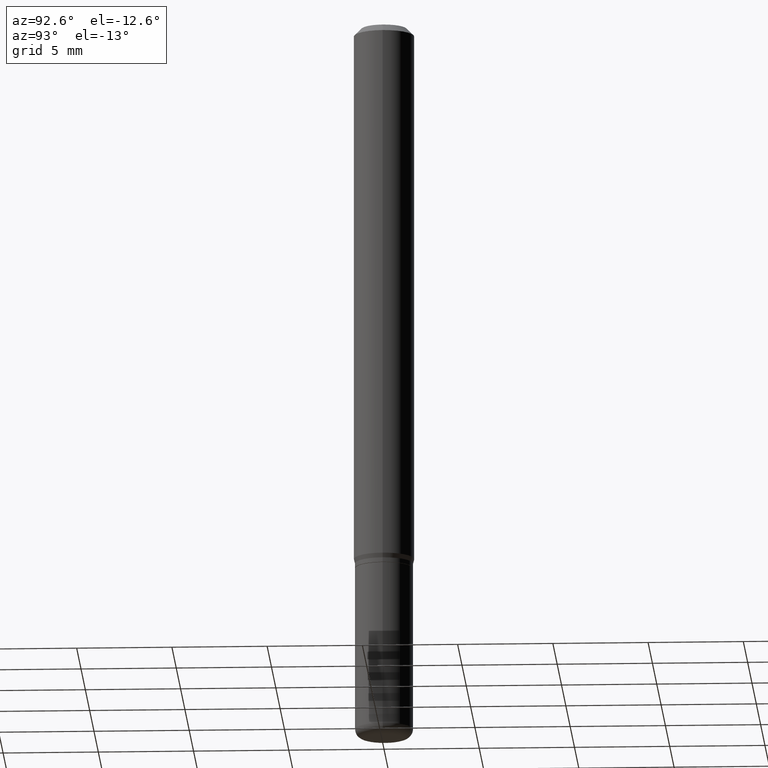
[diagram: clean part render]
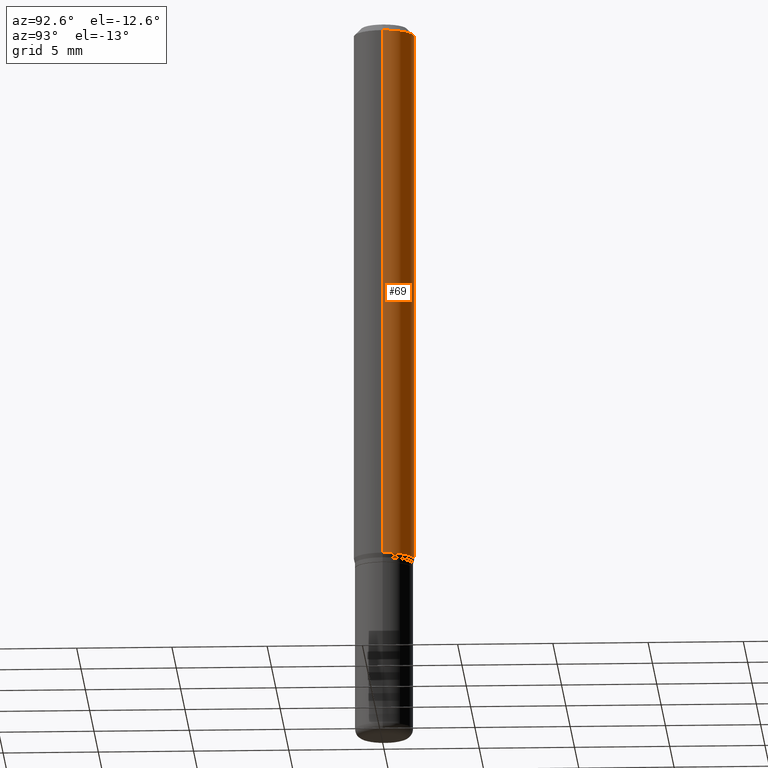
[diagram: same view with one face highlighted and labeled with its STEP entity id]
A machine part, auxiliary view. The second image highlights one B-rep face of the part: STEP entity #69.
In plain terms, the highlighted cylindrical surface (edge-blend (fillet) strip) has radius 1.5875 mm, axis along (-0, 0, 1).
Its self-contained STEP definition (entity closure, byte-faithful):
#5 = VERTEX_POINT ( 'NONE', #137 ) ;
#13 = DIRECTION ( 'NONE',  ( -2.445468806185136597E-29, 3.491481338843145583E-15, 1.000000000000000000 ) ) ;
#33 = VECTOR ( 'NONE', #306, 39.37007874015748143 ) ;
#48 = EDGE_CURVE ( 'NONE', #224, #383, #463, .T. ) ;
#69 = ADVANCED_FACE ( 'NONE', ( #215 ), #303, .T. ) ;
#72 = VERTEX_POINT ( 'NONE', #221 ) ;
#91 = ORIENTED_EDGE ( 'NONE', *, *, #48, .F. ) ;
#120 = EDGE_CURVE ( 'NONE', #5, #72, #428, .T. ) ;
#130 = CIRCLE ( 'NONE', #489, 0.06250000000000000000 ) ;
#137 = CARTESIAN_POINT ( 'NONE',  ( -0.06250000000000000000, -3.468708738667089875E-15, -1.120669872981078008 ) ) ;
#197 = AXIS2_PLACEMENT_3D ( 'NONE', #245, #200, #479 ) ;
#200 = DIRECTION ( 'NONE',  ( -2.445468806185136597E-29, 3.491481338843145583E-15, 1.000000000000000000 ) ) ;
#205 = VECTOR ( 'NONE', #494, 39.37007874015748143 ) ;
#211 = ORIENTED_EDGE ( 'NONE', *, *, #468, .T. ) ;
#215 = FACE_OUTER_BOUND ( 'NONE', #382, .T. ) ;
#221 = CARTESIAN_POINT ( 'NONE',  ( -0.06250000000000000000, -1.538495874449836183E-15, -0.01499999999999970281 ) ) ;
#224 = VERTEX_POINT ( 'NONE', #391 ) ;
#245 = CARTESIAN_POINT ( 'NONE',  ( 3.668203209277632395E-31, -5.237222008264614861E-17, -0.01499999999999970281 ) ) ;
#247 = CARTESIAN_POINT ( 'NONE',  ( 0.06250000000000000000, -4.888073874380378612E-16, -0.01499999999999970281 ) ) ;
#301 = DIRECTION ( 'NONE',  ( 1.000000000000000000, -6.982962677686262766E-15, 0.000000000000000000 ) ) ;
#303 = CYLINDRICAL_SURFACE ( 'NONE', #319, 0.06250000000000000000 ) ;
#306 = DIRECTION ( 'NONE',  ( -2.445468806185136877E-29, 3.491481338843145188E-15, 1.000000000000000000 ) ) ;
#319 = AXIS2_PLACEMENT_3D ( 'NONE', #425, #452, #337 ) ;
#337 = DIRECTION ( 'NONE',  ( 1.000000000000000000, -6.982962677686266711E-15, 4.876176775795935793E-29 ) ) ;
#353 = ORIENTED_EDGE ( 'NONE', *, *, #429, .F. ) ;
#378 = ORIENTED_EDGE ( 'NONE', *, *, #120, .T. ) ;
#380 = CARTESIAN_POINT ( 'NONE',  ( 0.06250000000000000000, -4.364351673553916694E-16, 3.047610484872459871E-30 ) ) ;
#382 = EDGE_LOOP ( 'NONE', ( #211, #378, #353, #91 ) ) ;
#383 = VERTEX_POINT ( 'NONE', #247 ) ;
#391 = CARTESIAN_POINT ( 'NONE',  ( 0.06250000000000000000, -4.349233115872544161E-15, -1.120669872981078008 ) ) ;
#412 = CARTESIAN_POINT ( 'NONE',  ( -0.06250000000000000000, 4.440892098500626162E-16, -3.074334431409316114E-30 ) ) ;
#424 = CARTESIAN_POINT ( 'NONE',  ( 2.740563216406685153E-29, -3.912797948517151703E-15, -1.120669872981078008 ) ) ;
#425 = CARTESIAN_POINT ( 'NONE',  ( 0.000000000000000000, 0.000000000000000000, 0.000000000000000000 ) ) ;
#428 = LINE ( 'NONE', #412, #205 ) ;
#429 = EDGE_CURVE ( 'NONE', #383, #72, #509, .T. ) ;
#452 = DIRECTION ( 'NONE',  ( -2.445468806185136597E-29, 3.491481338843145583E-15, 1.000000000000000000 ) ) ;
#463 = LINE ( 'NONE', #380, #33 ) ;
#468 = EDGE_CURVE ( 'NONE', #224, #5, #130, .T. ) ;
#479 = DIRECTION ( 'NONE',  ( 1.000000000000000000, -6.982962677686266711E-15, 0.000000000000000000 ) ) ;
#489 = AXIS2_PLACEMENT_3D ( 'NONE', #424, #13, #301 ) ;
#494 = DIRECTION ( 'NONE',  ( -2.445468806185136877E-29, 3.491481338843145188E-15, 1.000000000000000000 ) ) ;
#509 = CIRCLE ( 'NONE', #197, 0.06250000000000000000 ) ;